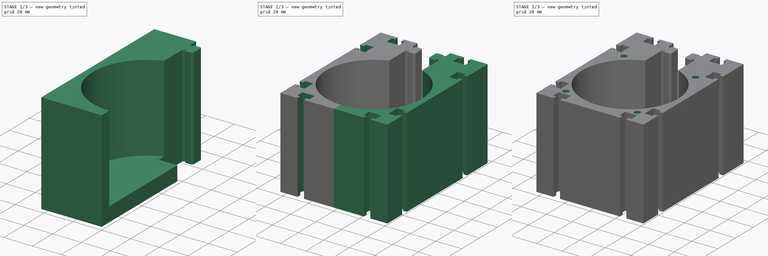
[diagram: build sequence overview — one tinted view per stage of 3, left to right]
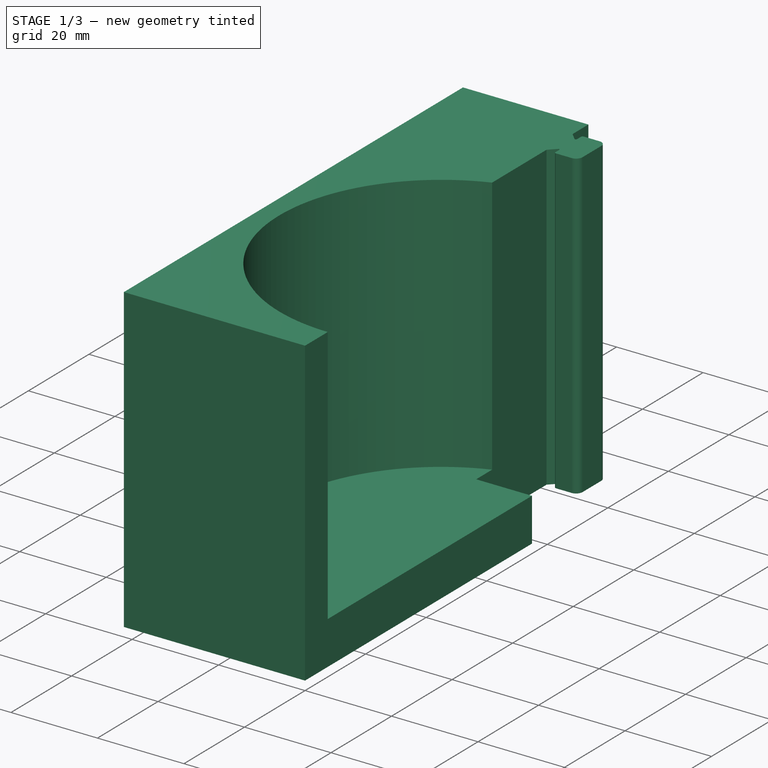
[diagram: stage 1 of 3 — iso view after this stage's code; geometry added in this stage tinted green]
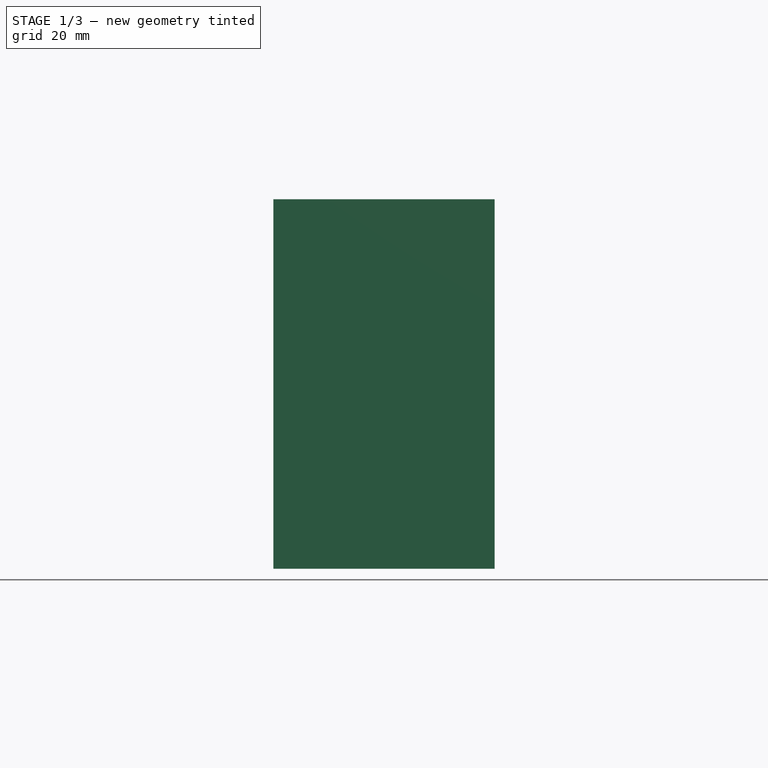
[diagram: stage 1 of 3 — front view after this stage's code; geometry added in this stage tinted green]
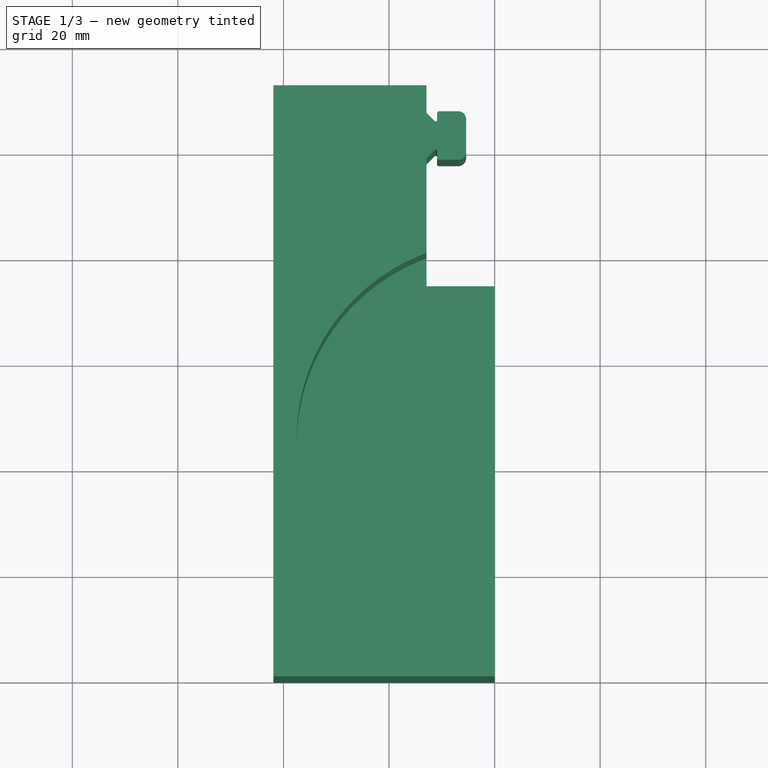
[diagram: stage 1 of 3 — top view after this stage's code; geometry added in this stage tinted green]
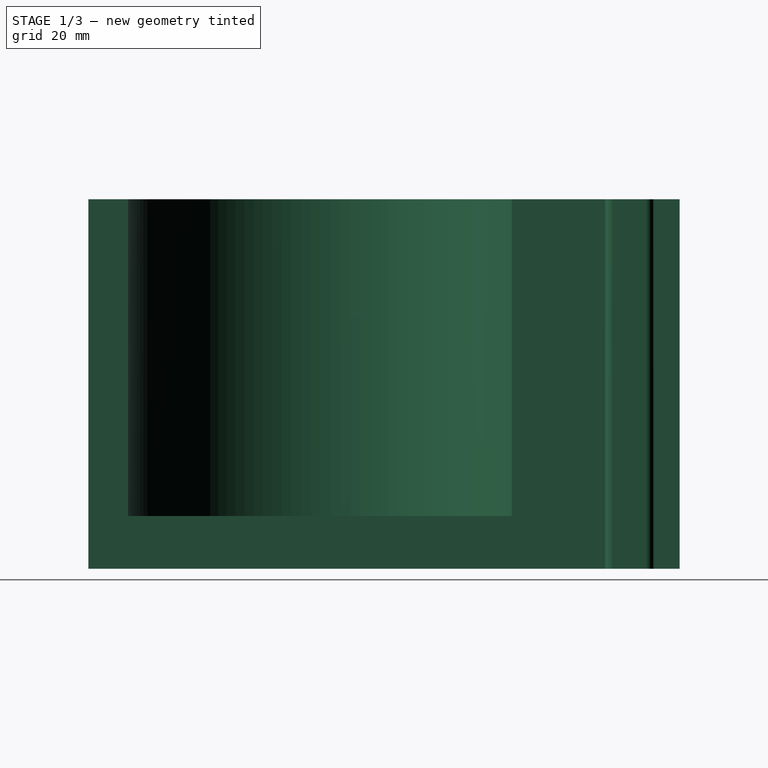
[diagram: stage 1 of 3 — right view after this stage's code; geometry added in this stage tinted green]
FCSTD DOCUMENT  (FreeCAD 0.20R29410 (Git))
Label: block
License: All rights reserved
LicenseURL: http://en.wikipedia.org/wiki/All_rights_reserved
objects: Sketcher::SketchObject×5, PartDesign::Pocket×4, App::Link×3, Part::Feature×2, PartDesign::Pad×1, PartDesign::Mirrored×1, PartDesign::Body×1, Spreadsheet::Sheet×1
note: 19 computed .brp shape members not serialized (recipe doc carries the construction recipe); baked Part::Feature solids carry a one-line shape summary decoded from their .brp
EXTERNAL_REF file=worm.FCStd obj=Body
EXTERNAL_REF file=rack.FCStd obj=Body
EXTERNAL_REF file=cover.FCStd obj=Body

FEATURE [PartDesign::Chamfer] Chamfer
  Angle = 45
  Base = -> Pocket001 [Edge256,Edge254,Edge258]
  BaseFeature = -> Pocket001
  ChamferType = 0
  FlipDirection = false
  Size = 2
  Size2 = 1
  SupportTransform = false
  UseAllEdges = false
FEATURE [PartDesign::Body] Body
  BaseFeature = -> InvoluteRack
  Group = -> [BaseFeature,Sketch,Pocket,Sketch001,Pocket001,Chamfer]
  Origin = -> Origin
  Tip = -> Chamfer
---- part worm.FCStd = doc fcstd_d9a325f1159e ----
FCSTD DOCUMENT  (FreeCAD 0.20R29410 (Git))
Label: worm
License: All rights reserved
LicenseURL: http://en.wikipedia.org/wiki/All_rights_reserved
objects: Sketcher::SketchObject×2, Part::FeaturePython×1, PartDesign::FeatureBase×1, PartDesign::Pocket×1, PartDesign::Pad×1, PartDesign::Body×1
note: 9 computed .brp shape members not serialized (recipe doc carries the construction recipe); baked Part::Feature solids carry a one-line shape summary decoded from their .brp

FEATURE [Part::FeaturePython] WormGear  # WARN: FeaturePython — macro-defined, semantics opaque (R4)
  AttacherType = Attacher::AttachEngine3D
  beta = 3.41659
  clearance = 0.25
  diameter = 67
  head = 0
  height = 56
  module = 2
  pressure_angle = 30
  reverse_pitch = false
  teeth = 2
  version = 0.0.4
FEATURE [Sketcher::SketchObject] Sketch
  FullyConstrained = true
  MapMode = 5
  Support = -> [XY_Plane]
  sketch-geometry (5):
    g0: ArcOfCircle CenterX=0 CenterY=0 CenterZ=0 NormalX=0 NormalY=0 NormalZ=1 AngleXU=0 Radius=4.1 StartAngle=1.84242 EndAngle=7.58236
    g1: LineSegment StartX=-1.1 StartY=3.94968 StartZ=0 EndX=-1.1 EndY=5.2 EndZ=0
    g2: LineSegment StartX=-1.1 StartY=5.2 StartZ=0 EndX=1.1 EndY=5.2 EndZ=0
    g3: LineSegment StartX=1.1 StartY=5.2 StartZ=0 EndX=1.1 EndY=3.94968 EndZ=0
    g4: GeomPoint X=0 Y=4.1 Z=0
  constraints (14):
    c: Coincident(g0,g-1)
    c: Diameter(g0) = 8.2
    c: Coincident(g1,g2)
    c: Coincident(g2,g3)
    c: Horizontal(g2)
    c: Vertical(g1)
    c: Vertical(g3)
    c: PointOnObject(g4,g0)
    c: PointOnObject(g4,g-2)
    c: DistanceX(g2,g2) = 2.2
    c: Coincident(g0,g3)
    c: Coincident(g0,g1)
    c: DistanceY(g4,g1) = 1.1
    c: Horizontal(g0,g0)
FEATURE [PartDesign::FeatureBase] BaseFeature
  BaseFeature = -> WormGear
FEATURE [PartDesign::Pocket] Pocket
  BaseFeature = -> BaseFeature
  Direction = (0,0,-1)
  Length = 45
  Length2 = 5
  Profile = -> Sketch
  ReferenceAxis = -> Sketch [N_Axis]
  Reversed = true
  Type = 0
FEATURE [Sketcher::SketchObject] Sketch001
  FullyConstrained = true
  MapMode = 5
  Placement = pos=(0.0012035,-0.000338703,55.9998) rot=(0.270908,0.962605,3e-06;2.2e-05rad)
  Support = -> [Pocket]
  sketch-geometry (1):
    g0: Circle CenterX=0 CenterY=0 CenterZ=0 NormalX=0 NormalY=0 NormalZ=1 AngleXU=0 Radius=4.7
  constraints (2):
    c: Coincident(g0,g-1)
    c: Diameter(g0) = 9.4
FEATURE [PartDesign::Pad] Pad
  BaseFeature = -> Pocket
  Direction = (2.14911e-05,-6.04828e-06,1)
  Length = 10
  Length2 = 10
  Profile = -> Sketch001
  ReferenceAxis = -> Sketch001 [N_Axis]
  Type = 0
FEATURE [PartDesign::Body] Body
  BaseFeature = -> WormGear
  Group = -> [BaseFeature,Sketch,Pocket,Sketch001,Pad]
  Origin = -> Origin
  Tip = -> Pad
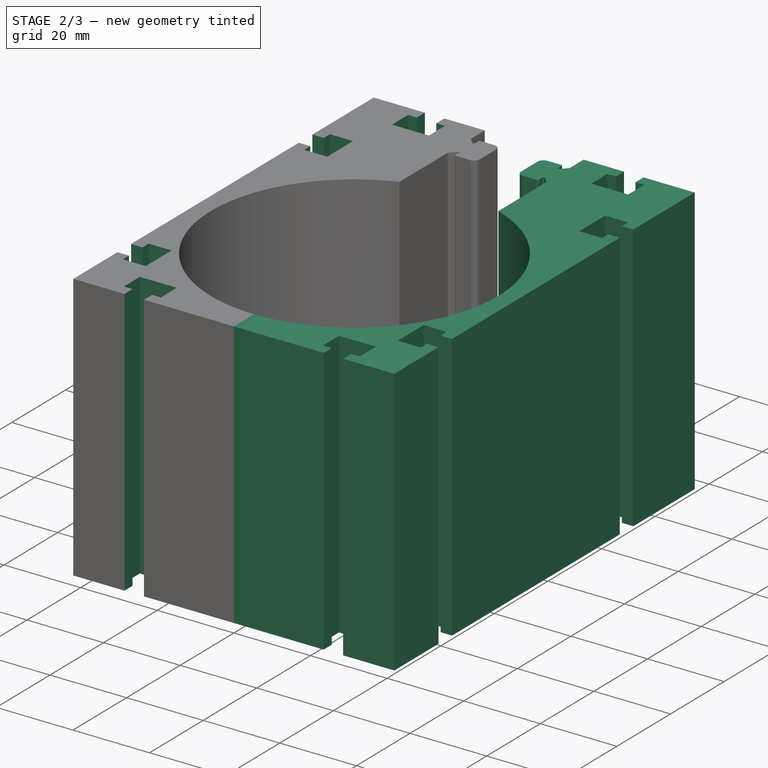
[diagram: stage 2 of 3 — iso view after this stage's code; geometry added in this stage tinted green]
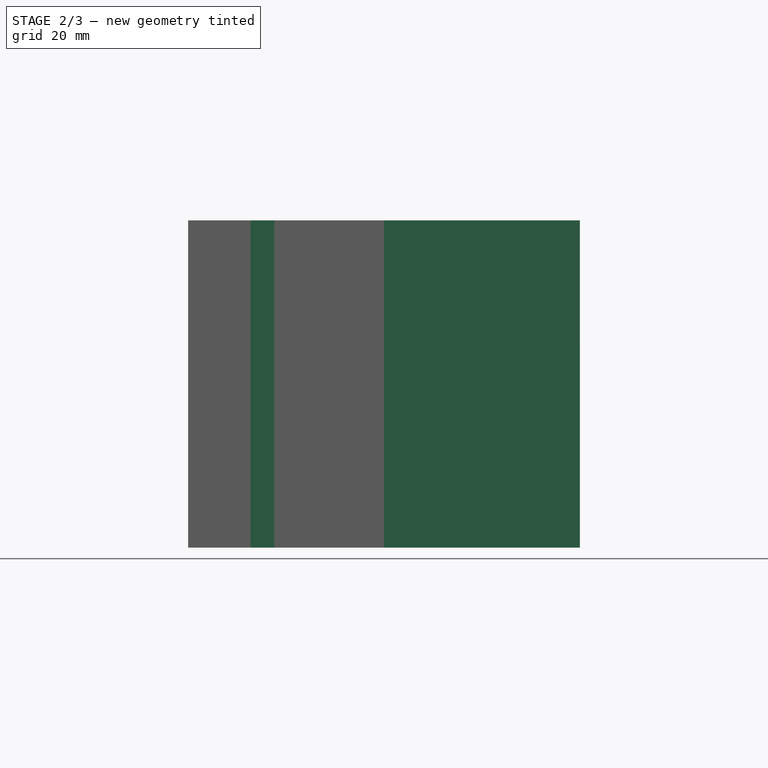
[diagram: stage 2 of 3 — front view after this stage's code; geometry added in this stage tinted green]
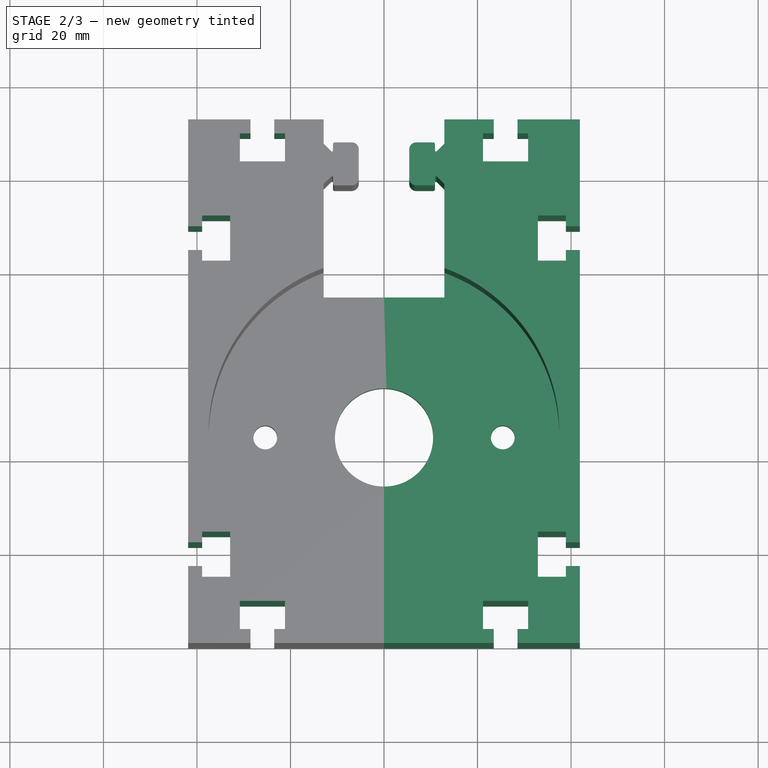
[diagram: stage 2 of 3 — top view after this stage's code; geometry added in this stage tinted green]
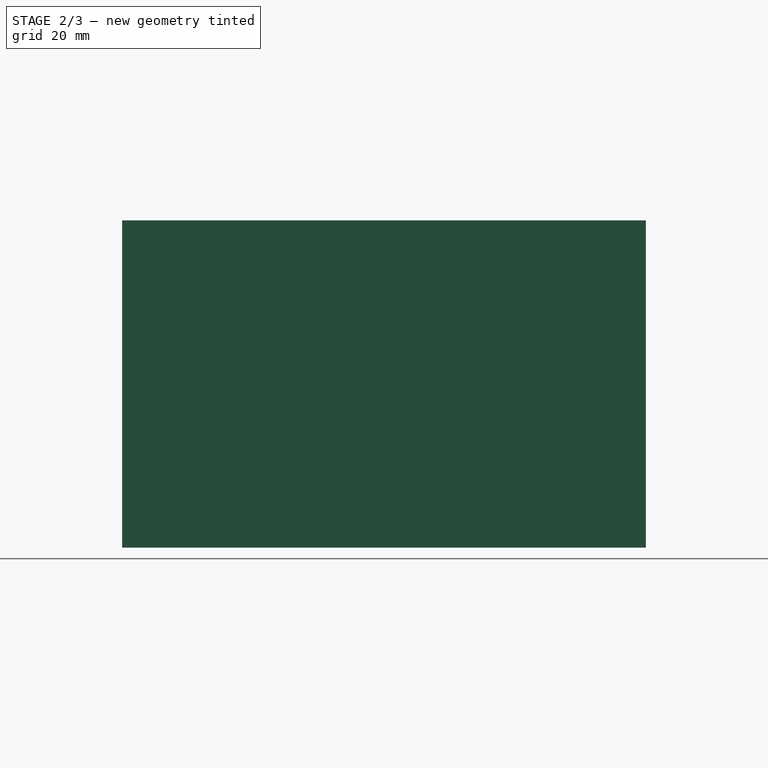
[diagram: stage 2 of 3 — right view after this stage's code; geometry added in this stage tinted green]
FEATURE [PartDesign::Body] Body
  Group = -> [Sketch,Pad,Sketch001,Pocket,Sketch002,Pocket001,Mirrored,Sketch003,Pocket002,Sketch004,Pocket003]
  Origin = -> Origin
  Tip = -> Pocket003
FEATURE [App::Link] Link  label="worm"
  LinkPlacement = pos=(0,45.1,11.1) rot=(0,0,1;0rad)
  LinkedObject = -> <external worm.FCStd>#Body
  Placement = pos=(0,45.1,11.1) rot=(0,0,1;0rad)
FEATURE [App::Link] Link001  label="rail"
  LinkPlacement = pos=(-12.2,80.2301,102.5) rot=(0.57735,-0.57735,0.57735;4.18879rad)
  LinkedObject = -> <external rack.FCStd>#Body
  Placement = pos=(-12.2,80.2301,102.5) rot=(0.57735,-0.57735,0.57735;4.18879rad)
FEATURE [App::Link] Link002  label="cover"
  LinkPlacement = pos=(0,-8.34465e-06,70) rot=(0,0,1;0rad)
  LinkedObject = -> <external cover.FCStd>#Body
  Placement = pos=(0,-8.34465e-06,70) rot=(0,0,1;0rad)
FEATURE [Part::Feature] Part__Feature001  label="217-2000"
  Placement = pos=(0,45,0) rot=(0,1,0;1.5708rad)
  shape: bbox 69.01 x 69.01 x 150.2 mm, 52 faces (baked)
FEATURE [Spreadsheet::Sheet] Spreadsheet
  cells = A1=motor distance; B1(motor_distance)==45mm

RESOLVED EXTERNAL PARTS (link-assembly join: the EXTERNAL_REF files above that resolve inside this repo's crawl, each included once):
---- part cover.FCStd = doc fcstd_0ceb0e149940 ----
FCSTD DOCUMENT  (FreeCAD 0.20R29410 (Git))
Label: cover
License: All rights reserved
LicenseURL: http://en.wikipedia.org/wiki/All_rights_reserved
objects: Sketcher::SketchObject×4, PartDesign::Pocket×3, PartDesign::Pad×1, PartDesign::Mirrored×1, PartDesign::Body×1
note: 14 computed .brp shape members not serialized (recipe doc carries the construction recipe); baked Part::Feature solids carry a one-line shape summary decoded from their .brp

FEATURE [Sketcher::SketchObject] Sketch
  FullyConstrained = true
  MapMode = 5
  Support = -> [XY_Plane]
  sketch-geometry (8):
    g0: LineSegment StartX=-2.6e-15 StartY=0 StartZ=0 EndX=-41.8 EndY=0 EndZ=0
    g1: LineSegment StartX=-41.8 StartY=0 StartZ=0 EndX=-41.8 EndY=112 EndZ=0
    g2: LineSegment StartX=-41.8 StartY=112 StartZ=0 EndX=-12.8 EndY=112 EndZ=0
    g3: LineSegment StartX=-12.8 StartY=112 StartZ=0 EndX=-12.8 EndY=76 EndZ=0
    g4: LineSegment StartX=-12.8 StartY=76 StartZ=0 EndX=-1.8e-15 EndY=76 EndZ=0
    g5: Circle CenterX=-28 CenterY=13 CenterZ=0 NormalX=0 NormalY=0 NormalZ=1 AngleXU=0 Radius=2.54
    g6: Circle CenterX=-28 CenterY=78 CenterZ=0 NormalX=0 NormalY=0 NormalZ=1 AngleXU=0 Radius=2.54
    g7: LineSegment StartX=-1.8e-15 StartY=76 StartZ=0 EndX=-2.6e-15 EndY=0 EndZ=0
  constraints (23):
    c: Coincident(g0,g1)
    c: Horizontal(g0)
    c: Vertical(g1)
    c: Coincident(g0,g-1)
    c: Coincident(g2,g1)
    c: Horizontal(g2)
    c: Coincident(g3,g2)
    c: Vertical(g3)
    c: Coincident(g4,g3)
    c: PointOnObject(g4,g-2)
    c: Horizontal(g4)
    c: Coincident(g7,g0)
    c: DistanceY(g1,g1) = 112
    c: DistanceX(g2,g2) = 29
    c: DistanceX(g4,g4) = 12.8
    c: DistanceY(g3,g3) = 36
    c: DistanceX(g5,g0) = 28
    c: Vertical(g6,g5)
    c: DistanceY(g5,g6) = 65
    c: DistanceY(g0,g5) = 13
    c: Equal(g5,g6)
    c: Diameter(g5) = 5.08
    c: Coincident(g7,g4)
FEATURE [PartDesign::Pad] Pad
  Direction = (0,0,1)
  Length = 12
  Length2 = 10
  Profile = -> Sketch
  ReferenceAxis = -> Sketch [N_Axis]
  Type = 0
FEATURE [PartDesign::Mirrored] Mirrored
  BaseFeature = -> Pad
  MirrorPlane = -> Sketch [V_Axis]
  Originals = -> [Pad]
FEATURE [PartDesign::Body] Body
  Group = -> [Sketch,Pad,Mirrored,Sketch001,Pocket,Sketch002,Pocket001,Sketch003,Pocket002]
  Origin = -> Origin
  Tip = -> Pocket002
---- part rack.FCStd = doc fcstd_aebf4dab78c8 ----
FCSTD DOCUMENT  (FreeCAD 0.20R29410 (Git))
Label: rack
License: All rights reserved
LicenseURL: http://en.wikipedia.org/wiki/All_rights_reserved
objects: Sketcher::SketchObject×2, PartDesign::Pocket×2, Part::FeaturePython×1, PartDesign::FeatureBase×1, PartDesign::Chamfer×1, PartDesign::Body×1
note: 11 computed .brp shape members not serialized (recipe doc carries the construction recipe); baked Part::Feature solids carry a one-line shape summary decoded from their .brp

FEATURE [Part::FeaturePython] InvoluteRack  # WARN: FeaturePython — macro-defined, semantics opaque (R4)
  AttacherType = Attacher::AttachEngine3D
  add_endings = true
  beta = 3.37
  clearance = 0.25
  double_helix = false
  head = 0
  head_fillet = 0
  height = 24
  module = 2
  pressure_angle = 30
  properties_from_tool = false
  root_fillet = 0
  simplified = false
  teeth = 17
  thickness = 7
  transverse_pitch = 6.28319
  version = 0.0.4
FEATURE [PartDesign::FeatureBase] BaseFeature
  BaseFeature = -> InvoluteRack
FEATURE [Sketcher::SketchObject] Sketch
  FullyConstrained = true
  MapMode = 5
  Placement = pos=(-9.5,0,0) rot=(0.57735,-0.57735,-0.57735;2.0944rad)
  Support = -> [BaseFeature]
  sketch-geometry (3):
    g0: Circle CenterX=-12 CenterY=12 CenterZ=0 NormalX=0 NormalY=0 NormalZ=1 AngleXU=0 Radius=2.54
    g1: Circle CenterX=-48 CenterY=12 CenterZ=0 NormalX=0 NormalY=0 NormalZ=1 AngleXU=0 Radius=2.54
    g2: Circle CenterX=-84 CenterY=12 CenterZ=0 NormalX=0 NormalY=0 NormalZ=1 AngleXU=0 Radius=2.54
  constraints (9):
    c: DistanceY(g-1,g0) = 12
    c: DistanceX(g0,g-1) = 12
    c: DistanceX(g2,g1) = 36
    c: Horizontal(g2,g1)
    c: Equal(g1,g2)
    c: Diameter(g0) = 5.08
    c: DistanceX(g1,g0) = 36
    c: Horizontal(g1,g0)
    c: Equal(g2,g0)
FEATURE [PartDesign::Pocket] Pocket  label="Through Hole"
  BaseFeature = -> BaseFeature
  Direction = (1,0,0)
  Length = 5
  Length2 = 5
  Profile = -> Sketch
  ReferenceAxis = -> Sketch [N_Axis]
  Type = 1
FEATURE [Sketcher::SketchObject] Sketch001
  AttachmentOffset = pos=(0,0,-6.35) rot=(0,0,1;0rad)
  FullyConstrained = true
  MapMode = 5
  Placement = pos=(-3.15,0,0) rot=(0.57735,-0.57735,-0.57735;2.0944rad)
  Support = -> [Pocket]
  sketch-geometry (3):
    g0: Circle CenterX=-12 CenterY=12 CenterZ=0 NormalX=0 NormalY=0 NormalZ=1 AngleXU=0 Radius=5.08
    g1: Circle CenterX=-48 CenterY=12 CenterZ=0 NormalX=0 NormalY=0 NormalZ=1 AngleXU=0 Radius=5.08
    g2: Circle CenterX=-84 CenterY=12 CenterZ=0 NormalX=0 NormalY=0 NormalZ=1 AngleXU=0 Radius=5.08
  constraints (9):
    c: DistanceX(g0,g-1) = 12
    c: DistanceY(g-1,g0) = 12
    c: DistanceX(g1,g0) = 36
    c: Equal(g0,g1)
    c: Diameter(g0) = 10.16
    c: DistanceX(g2,g1) = 36
    c: Equal(g1,g2)
    c: Horizontal(g2,g1)
    c: Horizontal(g1,g0)
FEATURE [PartDesign::Pocket] Pocket001
  BaseFeature = -> Pocket
  Direction = (1,0,0)
  Length = 5
  Length2 = 5
  Profile = -> Sketch001
  ReferenceAxis = -> Sketch001 [N_Axis]
  Type = 1
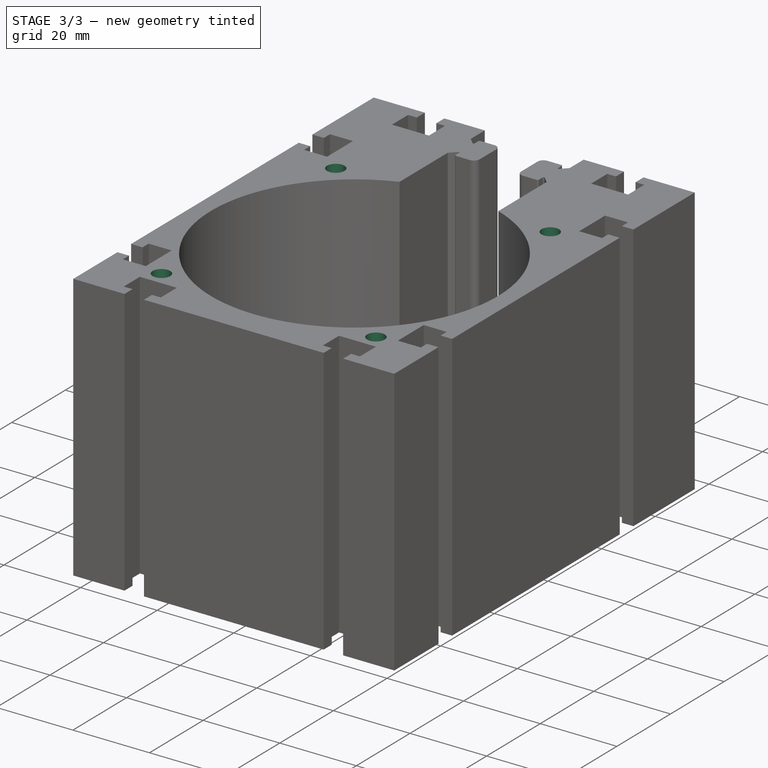
[diagram: stage 3 of 3 — iso view after this stage's code; geometry added in this stage tinted green]
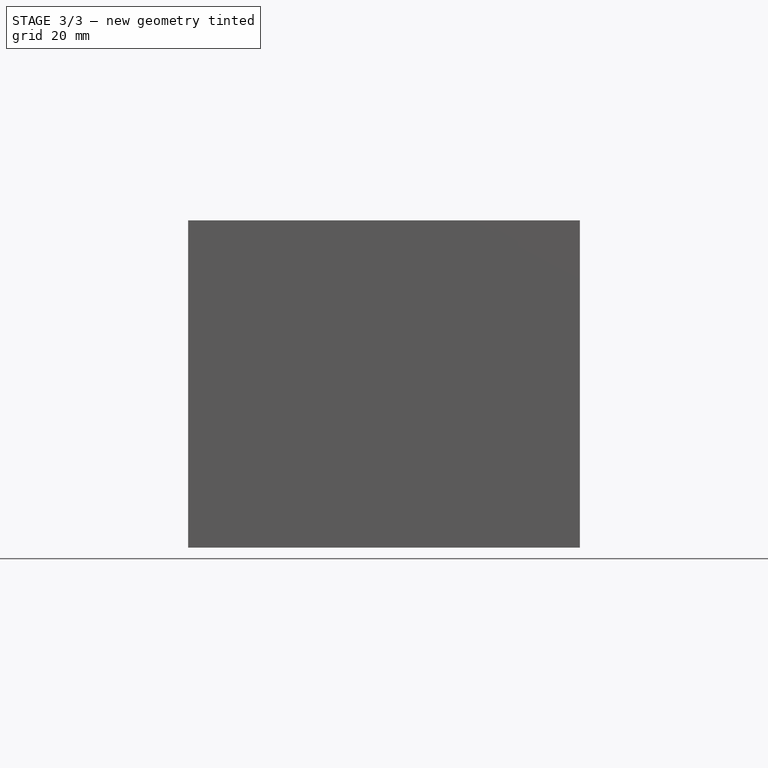
[diagram: stage 3 of 3 — front view after this stage's code; geometry added in this stage tinted green]
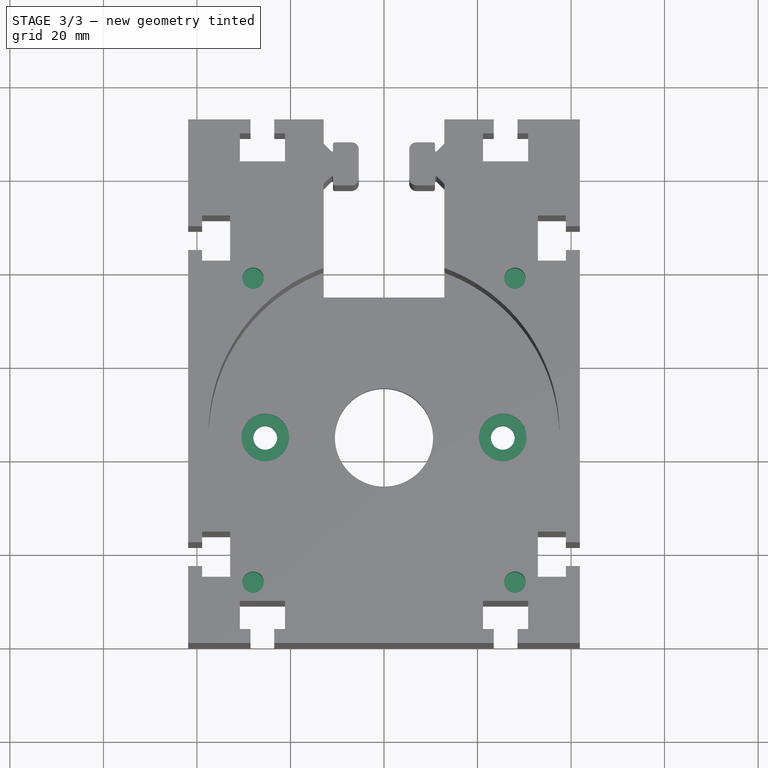
[diagram: stage 3 of 3 — top view after this stage's code; geometry added in this stage tinted green]
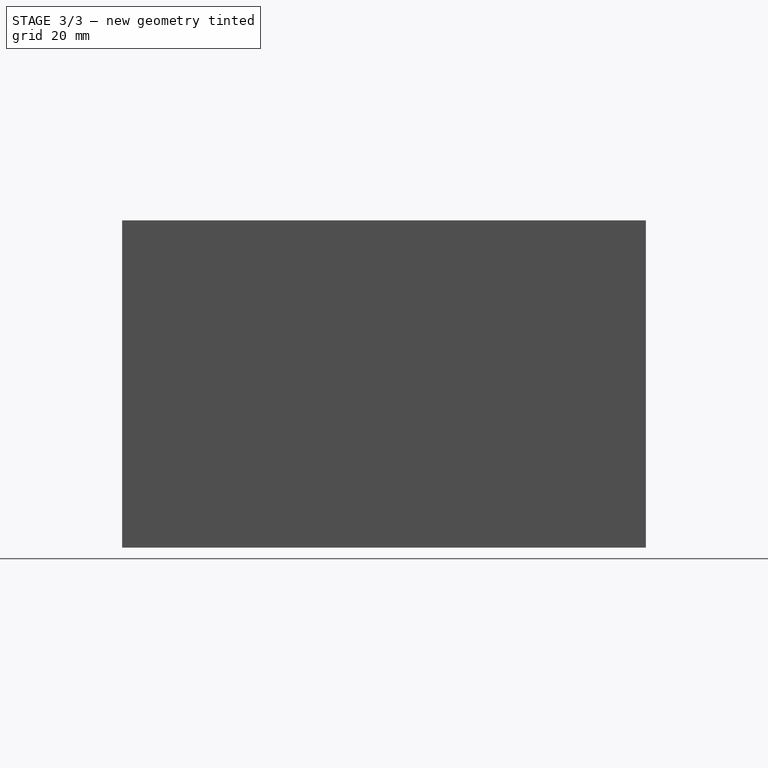
[diagram: stage 3 of 3 — right view after this stage's code; geometry added in this stage tinted green]
FEATURE [Sketcher::SketchObject] Sketch
  FullyConstrained = true
  MapMode = 5
  Support = -> [XY_Plane]
  sketch-geometry (21):
    g0: LineSegment StartX=0 StartY=0 StartZ=0 EndX=-41.9 EndY=0 EndZ=0
    g1: LineSegment StartX=-41.9 StartY=0 StartZ=0 EndX=-41.9 EndY=112 EndZ=0
    g2: LineSegment StartX=-10.8964 StartY=105.375 StartZ=0 EndX=-10.8964 EndY=106.7 EndZ=0
    g3: LineSegment StartX=-10.5214 StartY=107.075 StartZ=0 EndX=-6.89645 EndY=107.075 EndZ=0
    g4: LineSegment StartX=-5.39645 StartY=105.575 StartZ=0 EndX=-5.39645 EndY=99.375 EndZ=0
    g5: LineSegment StartX=-6.89645 StartY=97.875 StartZ=0 EndX=-10.5214 EndY=97.875 EndZ=0
    g6: LineSegment StartX=-10.8964 StartY=98.25 StartZ=0 EndX=-10.8964 EndY=99.575 EndZ=0
    g7: LineSegment StartX=-11.3232 StartY=99.7518 StartZ=0 EndX=-12.9 EndY=98.175 EndZ=0
    g8: ArcOfCircle CenterX=-10.5214 CenterY=106.7 CenterZ=0 NormalX=0 NormalY=0 NormalZ=1 AngleXU=0 Radius=0.375 StartAngle=1.5708 EndAngle=3.14159
    g9: ArcOfCircle CenterX=-6.89645 CenterY=105.575 CenterZ=0 NormalX=0 NormalY=0 NormalZ=1 AngleXU=0 Radius=1.5 StartAngle=4.6e-15 EndAngle=1.5708
    g10: ArcOfCircle CenterX=-6.89645 CenterY=99.375 CenterZ=0 NormalX=0 NormalY=0 NormalZ=1 AngleXU=0 Radius=1.5 StartAngle=4.71239 EndAngle=6.28319
    g11: ArcOfCircle CenterX=-10.5214 CenterY=98.25 CenterZ=0 NormalX=0 NormalY=0 NormalZ=1 AngleXU=0 Radius=0.375 StartAngle=3.14159 EndAngle=4.71239
    g12: LineSegment StartX=-41.9 StartY=112 StartZ=0 EndX=-12.9 EndY=112 EndZ=0
    g13: LineSegment StartX=-12.9 StartY=112 StartZ=0 EndX=-12.9 EndY=106.775 EndZ=0
    g14: LineSegment StartX=-12.9 StartY=106.775 StartZ=0 EndX=-11.3232 EndY=105.198 EndZ=0
    g15: LineSegment StartX=-12.9 StartY=98.175 StartZ=0 EndX=-12.9 EndY=92.95 EndZ=0
    g16: LineSegment StartX=-12.9 StartY=92.95 StartZ=0 EndX=-12.9 EndY=74.95 EndZ=0
    g17: ArcOfCircle CenterX=-11.1464 CenterY=105.375 CenterZ=0 NormalX=0 NormalY=0 NormalZ=1 AngleXU=0 Radius=0.25 StartAngle=3.92699 EndAngle=6.28319
    g18: ArcOfCircle CenterX=-11.1464 CenterY=99.575 CenterZ=0 NormalX=0 NormalY=0 NormalZ=1 AngleXU=0 Radius=0.25 StartAngle=1.11e-14 EndAngle=2.35619
    g19: LineSegment StartX=-12.9 StartY=74.95 StartZ=0 EndX=0 EndY=74.95 EndZ=0
    g20: LineSegment StartX=0 StartY=0 StartZ=0 EndX=0 EndY=74.95 EndZ=0
  constraints (56):
    c: Coincident(g0,g-1)
    c: PointOnObject(g0,g-1)
    c: Coincident(g1,g0)
    c: Vertical(g1)
    c: Vertical(g2)
    c: Horizontal(g3)
    c: Vertical(g4)
    c: Horizontal(g5)
    c: Vertical(g6)
    c: Tangent(g2,g8) = 1.5708
    c: Tangent(g3,g8) = 1.5708
    c: Tangent(g3,g9) = 1.5708
    c: Tangent(g4,g9) = 1.5708
    c: Tangent(g4,g10) = 1.5708
    c: Tangent(g5,g10) = 1.5708
    c: Tangent(g5,g11) = 1.5708
    c: Tangent(g6,g11) = 1.5708
    c: Diameter(g10) = 3
    c: Diameter(g11) = 0.75
    c: Equal(g11,g8)
    c: Equal(g9,g10)
    c: DistanceY(g5,g3) = 9.2
    c: Equal(g6,g2)
    c: Coincident(g12,g1)
    c: Horizontal(g12)
    c: Coincident(g13,g12)
    c: Vertical(g13)
    c: Coincident(g14,g13)
    c: Coincident(g15,g7)
    c: Vertical(g15)
    c: Coincident(g16,g15)
    c: Vertical(g16)
    c: DistanceY(g15,g12) = 19.05
    c: Equal(g15,g13)
    c: Vertical(g7,g13)
    c: Tangent(g2,g17) = -1.5708
    c: Tangent(g14,g17) = -1.5708
    c: Tangent(g6,g18) = -1.5708
    c: Tangent(g7,g18) = -1.5708
    c: Vertical(g18,g17)
    c: Diameter(g17) = 0.5
    c: Equal(g18,g17)
    c: DistanceY(g18,g17) = 5.8
    c: DistanceY(g7,g13) = 8.6
    c: Equal(g14,g7)
    c: DistanceX(g2,g4) = 5.5
    c: DistanceX(g12,g12) = 29
    c: DistanceY(g1,g1) = 112
    c: DistanceX(g12,g-1) = 12.9
    c: Coincident(g19,g16)
    c: PointOnObject(g19,g-2)
    c: Horizontal(g19)
    c: Coincident(g20,g0)
    c: Coincident(g20,g19)
    c: DistanceY(g16,g16) = 18
    c: Angle(g2,g14) = 0.785398
FEATURE [Part::Feature] Part__Feature  label="REV-21-1000"
  Placement = pos=(0,102.46,0) rot=(0,0,1;0rad)
  shape: bbox 25.4 x 25.4 x 500 mm, 162 faces (baked)
FEATURE [PartDesign::Pad] Pad
  Direction = (0,0,1)
  Length = 70
  Length2 = 10
  Profile = -> Sketch
  ReferenceAxis = -> Sketch [N_Axis]
  Type = 0
FEATURE [Sketcher::SketchObject] Sketch001
  FullyConstrained = true
  MapMode = 5
  Placement = pos=(0,0,70) rot=(0,0,1;0rad)
  Support = -> [Pad]
  expr: Constraints[1] = Spreadsheet.motor_distance
  sketch-geometry (1):
    g0: Circle CenterX=0 CenterY=45 CenterZ=0 NormalX=0 NormalY=0 NormalZ=1 AngleXU=0 Radius=37.5
  constraints (3):
    c: PointOnObject(g0,g-2)
    c: DistanceY(g-1,g0) = 45
    c: Diameter(g0) = 75
FEATURE [PartDesign::Pocket] Pocket
  BaseFeature = -> Pad
  Direction = (0,0,-1)
  Length = 0
  Length2 = 5
  Offset = -10
  Profile = -> Sketch001
  ReferenceAxis = -> Sketch001 [N_Axis]
  Type = 3
  UpToFace = -> Pad [Face22]
FEATURE [Sketcher::SketchObject] Sketch002
  ExternalGeometry = -> [Pocket]
  FullyConstrained = false
  MapMode = 5
  Placement = pos=(0,0,70) rot=(0,0,1;0rad)
  Support = -> [Pocket]
  expr: Constraints[26] = Spreadsheet.motor_distance
  sketch-geometry (38):
    g0: Circle CenterX=-25.4 CenterY=45 CenterZ=0 NormalX=0 NormalY=0 NormalZ=1 AngleXU=0 Radius=2.54
    g1: LineSegment StartX=-30.826 StartY=109 StartZ=0 EndX=-28.54 EndY=109 EndZ=0
    g2: LineSegment StartX=-21.174 StartY=109 StartZ=0 EndX=-21.174 EndY=103 EndZ=0
    g3: LineSegment StartX=-21.174 StartY=103 StartZ=0 EndX=-30.826 EndY=103 EndZ=0
    g4: LineSegment StartX=-30.826 StartY=103 StartZ=0 EndX=-30.826 EndY=109 EndZ=0
    g5: LineSegment StartX=-38.9 StartY=91.426 StartZ=0 EndX=-32.9 EndY=91.426 EndZ=0
    g6: LineSegment StartX=-32.9 StartY=91.426 StartZ=0 EndX=-32.9 EndY=81.774 EndZ=0
    g7: LineSegment StartX=-32.9 StartY=81.774 StartZ=0 EndX=-38.9 EndY=81.774 EndZ=0
    g8: LineSegment StartX=-38.9 StartY=81.774 StartZ=0 EndX=-38.9 EndY=84.06 EndZ=0
    g9: LineSegment StartX=-38.9 StartY=23.826 StartZ=0 EndX=-32.9 EndY=23.826 EndZ=0
    g10: LineSegment StartX=-32.9 StartY=23.826 StartZ=0 EndX=-32.9 EndY=14.174 EndZ=0
    g11: LineSegment StartX=-32.9 StartY=14.174 StartZ=0 EndX=-38.9 EndY=14.174 EndZ=0
    g12: LineSegment StartX=-38.9 StartY=14.174 StartZ=0 EndX=-38.9 EndY=16.46 EndZ=0
    g13: LineSegment StartX=-23.46 StartY=109 StartZ=0 EndX=-23.46 EndY=117.224 EndZ=0
    g14: LineSegment StartX=-23.46 StartY=117.224 StartZ=0 EndX=-28.54 EndY=117.224 EndZ=0
    g15: LineSegment StartX=-28.54 StartY=117.224 StartZ=0 EndX=-28.54 EndY=109 EndZ=0
    g16: LineSegment StartX=-23.46 StartY=109 StartZ=0 EndX=-21.174 EndY=109 EndZ=0
    g17: GeomPoint X=-26 Y=117.224 Z=0
    g18: LineSegment StartX=-38.9 StartY=89.14 StartZ=0 EndX=-44.971 EndY=89.14 EndZ=0
    g19: LineSegment StartX=-44.971 StartY=89.14 StartZ=0 EndX=-44.971 EndY=84.06 EndZ=0
    g20: LineSegment StartX=-44.971 StartY=84.06 StartZ=0 EndX=-38.9 EndY=84.06 EndZ=0
    g21: LineSegment StartX=-38.9 StartY=89.14 StartZ=0 EndX=-38.9 EndY=91.426 EndZ=0
    g22: GeomPoint X=-44.971 Y=86.6 Z=0
    g23: Circle CenterX=0 CenterY=45 CenterZ=0 NormalX=0 NormalY=0 NormalZ=1 AngleXU=0 Radius=10.5
    g24: LineSegment StartX=-38.9 StartY=16.46 StartZ=0 EndX=-45.3888 EndY=16.46 EndZ=0
    g25: LineSegment StartX=-45.3888 StartY=16.46 StartZ=0 EndX=-45.3888 EndY=21.54 EndZ=0
    g26: LineSegment StartX=-45.3888 StartY=21.54 StartZ=0 EndX=-38.9 EndY=21.54 EndZ=0
    g27: LineSegment StartX=-38.9 StartY=21.54 StartZ=0 EndX=-38.9 EndY=23.826 EndZ=0
    g28: GeomPoint X=-45.3888 Y=19 Z=0
    g29: LineSegment StartX=-30.826 StartY=3 StartZ=0 EndX=-28.54 EndY=3 EndZ=0
    g30: LineSegment StartX=-21.174 StartY=3 StartZ=0 EndX=-21.174 EndY=9 EndZ=0
    g31: LineSegment StartX=-21.174 StartY=9 StartZ=0 EndX=-30.826 EndY=9 EndZ=0
    g32: LineSegment StartX=-30.826 StartY=9 StartZ=0 EndX=-30.826 EndY=3 EndZ=0
    g33: LineSegment StartX=-28.54 StartY=3 StartZ=0 EndX=-28.54 EndY=-1.73673 EndZ=0
    g34: LineSegment StartX=-28.54 StartY=-1.73673 StartZ=0 EndX=-23.46 EndY=-1.73673 EndZ=0
    g35: LineSegment StartX=-23.46 StartY=-1.73673 StartZ=0 EndX=-23.46 EndY=3 EndZ=0
    g36: LineSegment StartX=-23.46 StartY=3 StartZ=0 EndX=-21.174 EndY=3 EndZ=0
    g37: GeomPoint X=-26 Y=-1.73673 Z=0
  constraints (102):
    c: Coincident(g16,g2)
    c: Coincident(g2,g3)
    c: Coincident(g3,g4)
    c: Coincident(g4,g1)
    c: Horizontal(g1)
    c: Horizontal(g3)
    c: Vertical(g2)
    c: Vertical(g4)
    c: Coincident(g5,g6)
    c: Coincident(g6,g7)
    c: Coincident(g7,g8)
    c: Coincident(g21,g5)
    c: Horizontal(g5)
    c: Horizontal(g7)
    c: Vertical(g6)
    c: Vertical(g8)
    c: Coincident(g9,g10)
    c: Coincident(g10,g11)
    c: Coincident(g11,g12)
    c: Coincident(g27,g9)
    c: Horizontal(g9)
    c: Horizontal(g11)
    c: Vertical(g10)
    c: Vertical(g12)
    c: Diameter(g0) = 5.08
    c: DistanceX(g0,g-1) = 25.4
    c: DistanceY(g-1,g0) = 45
    c: Coincident(g13,g14)
    c: Coincident(g14,g15)
    c: Horizontal(g14)
    c: Vertical(g13)
    c: Vertical(g15)
    c: Coincident(g1,g15)
    c: Coincident(g13,g16)
    c: DistanceY(g1,g-4) = 3
    c: Horizontal(g1,g13)
    c: Horizontal(g16)
    c: DistanceX(g14,g14) = 5.08
    c: DistanceX(g3,g3) = 9.652
    c: Equal(g16,g1)
    c: Symmetric(g14,g13,g17)
    c: DistanceX(g17,g-1) = 26
    c: Horizontal(g18)
    c: Coincident(g19,g18)
    c: Vertical(g19)
    c: Coincident(g20,g19)
    c: Horizontal(g20)
    c: Coincident(g8,g20)
    c: Coincident(g21,g18)
    c: DistanceY(g6,g6) = 9.652
    c: Equal(g21,g8)
    c: DistanceY(g19,g19) = 5.08
    c: DistanceY(g4,g4) = 6
    c: DistanceX(g5,g5) = 6
    c: Vertical(g21)
    c: Vertical(g18,g8)
    c: Symmetric(g19,g18,g22)
    c: DistanceY(g22,g-4) = 25.4
    c: DistanceX(g-4,g5) = 3
    c: PointOnObject(g23,g-2)
    c: Horizontal(g23,g0)
    c: Diameter(g23) = 21
    c: Horizontal(g24)
    c: Coincident(g25,g24)
    c: Vertical(g25)
    c: Coincident(g26,g25)
    c: Horizontal(g26)
    c: DistanceX(g9,g9) = 6
    c: DistanceY(g10,g10) = 9.652
    c: Vertical(g27)
    c: DistanceX(g-4,g9) = 3
    c: Symmetric(g25,g24,g28)
    c: DistanceY(g-5,g28) = 19
    c: Coincident(g24,g12)
    c: Equal(g27,g12)
    c: DistanceY(g25,g25) = 5.08
    c: Coincident(g26,g27)
    c: Vertical(g26,g12)
    c: Coincident(g36,g30)
    c: Coincident(g30,g31)
    c: Coincident(g31,g32)
    c: Coincident(g32,g29)
    c: Horizontal(g29)
    c: Horizontal(g31)
    c: Vertical(g30)
    c: Vertical(g32)
    c: DistanceX(g31,g31) = 9.652
    c: DistanceY(g32,g32) = 6
    c: Vertical(g33)
    c: Coincident(g34,g33)
    c: Horizontal(g34)
    c: Coincident(g35,g34)
    c: Vertical(g35)
    c: Coincident(g29,g33)
    c: Coincident(g36,g35)
    c: Equal(g29,g36)
    c: Horizontal(g36)
    c: Horizontal(g29,g35)
    c: DistanceY(g-5,g29) = 3
    c: Symmetric(g33,g34,g37)
    c: DistanceX(g34,g34) = 5.08
    c: DistanceX(g37,g-5) = 26
FEATURE [PartDesign::Pocket] Pocket001
  BaseFeature = -> Pocket
  Direction = (0,0,-1)
  Length = 5
  Length2 = 5
  Profile = -> Sketch002
  ReferenceAxis = -> Sketch002 [N_Axis]
  Type = 1
FEATURE [PartDesign::Mirrored] Mirrored
  BaseFeature = -> Pocket001
  MirrorPlane = -> Sketch [V_Axis]
  Originals = -> [Pad,Pocket,Pocket001]
FEATURE [Sketcher::SketchObject] Sketch003
  FullyConstrained = true
  MapMode = 5
  Placement = pos=(0,0,10) rot=(0,0,1;0rad)
  Support = -> [Mirrored]
  expr: Constraints[5] = Spreadsheet.motor_distance
  sketch-geometry (2):
    g0: Circle CenterX=-25.4 CenterY=45 CenterZ=0 NormalX=0 NormalY=0 NormalZ=1 AngleXU=0 Radius=5.08
    g1: Circle CenterX=25.4 CenterY=45 CenterZ=0 NormalX=0 NormalY=0 NormalZ=1 AngleXU=0 Radius=5.08
  constraints (6):
    c: DistanceX(g0,g1) = 50.8
    c: DistanceX(g0,g-1) = 25.4
    c: Equal(g0,g1)
    c: Diameter(g0) = 10.16
    c: Horizontal(g1,g0)
    c: DistanceY(g-1,g0) = 45
FEATURE [PartDesign::Pocket] Pocket002
  BaseFeature = -> Mirrored
  Direction = (0,0,-1)
  Length = 3.5
  Length2 = 5
  Profile = -> Sketch003
  ReferenceAxis = -> Sketch003 [N_Axis]
  Type = 0
FEATURE [Sketcher::SketchObject] Sketch004
  FullyConstrained = true
  MapMode = 5
  Placement = pos=(0,0,70) rot=(0,0,1;0rad)
  Support = -> [Pocket002]
  sketch-geometry (4):
    g0: Circle CenterX=-28 CenterY=78 CenterZ=0 NormalX=0 NormalY=0 NormalZ=1 AngleXU=0 Radius=2.286
    g1: Circle CenterX=28 CenterY=78 CenterZ=0 NormalX=0 NormalY=0 NormalZ=1 AngleXU=0 Radius=2.286
    g2: Circle CenterX=28 CenterY=13 CenterZ=0 NormalX=0 NormalY=0 NormalZ=1 AngleXU=0 Radius=2.286
    g3: Circle CenterX=-28 CenterY=13 CenterZ=0 NormalX=0 NormalY=0 NormalZ=1 AngleXU=0 Radius=2.286
  constraints (12):
    c: DistanceX(g3,g-1) = 28
    c: Equal(g0,g1)
    c: Equal(g1,g2)
    c: Equal(g2,g3)
    c: Diameter(g3) = 4.572
    c: Vertical(g3,g0)
    c: Vertical(g2,g1)
    c: Horizontal(g3,g2)
    c: Horizontal(g0,g1)
    c: DistanceY(g3,g0) = 65
    c: DistanceX(g-1,g2) = 28
    c: DistanceY(g-1,g3) = 13
FEATURE [PartDesign::Pocket] Pocket003
  BaseFeature = -> Pocket002
  Direction = (0,0,-1)
  Length = 10
  Length2 = 5
  Profile = -> Sketch004
  ReferenceAxis = -> Sketch004 [N_Axis]
  Type = 0
FEATURE [Sketcher::SketchObject] Sketch001
  FullyConstrained = true
  MapMode = 5
  Support = -> [XY_Plane]
  sketch-geometry (1):
    g0: Circle CenterX=0 CenterY=45 CenterZ=0 NormalX=0 NormalY=0 NormalZ=1 AngleXU=0 Radius=14.35
  constraints (3):
    c: PointOnObject(g0,g-2)
    c: Diameter(g0) = 28.7
    c: DistanceY(g-1,g0) = 45
FEATURE [PartDesign::Pocket] Pocket
  BaseFeature = -> Mirrored
  Direction = (0,0,-1)
  Length = 9.53
  Length2 = 5
  Profile = -> Sketch001
  ReferenceAxis = -> Sketch001 [N_Axis]
  Reversed = true
  Type = 0
FEATURE [Sketcher::SketchObject] Sketch002
  FullyConstrained = true
  MapMode = 5
  Support = -> [XY_Plane]
  sketch-geometry (1):
    g0: Circle CenterX=0 CenterY=45 CenterZ=0 NormalX=0 NormalY=0 NormalZ=1 AngleXU=0 Radius=12.5
  constraints (3):
    c: PointOnObject(g0,g-2)
    c: Diameter(g0) = 25
    c: DistanceY(g-1,g0) = 45
FEATURE [PartDesign::Pocket] Pocket001
  BaseFeature = -> Pocket
  Direction = (0,0,-1)
  Length = 5
  Length2 = 5
  Profile = -> Sketch002
  ReferenceAxis = -> Sketch002 [N_Axis]
  Reversed = true
  Type = 1
FEATURE [Sketcher::SketchObject] Sketch003
  FullyConstrained = true
  MapMode = 5
  Placement = pos=(0,0,12) rot=(0,0,1;0rad)
  Support = -> [Pocket001]
  sketch-geometry (4):
    g0: Circle CenterX=-28 CenterY=13 CenterZ=0 NormalX=0 NormalY=0 NormalZ=1 AngleXU=0 Radius=5.08
    g1: Circle CenterX=-28 CenterY=78 CenterZ=0 NormalX=0 NormalY=0 NormalZ=1 AngleXU=0 Radius=5.08
    g2: Circle CenterX=28 CenterY=78 CenterZ=0 NormalX=0 NormalY=0 NormalZ=1 AngleXU=0 Radius=5.08
    g3: Circle CenterX=28 CenterY=13 CenterZ=0 NormalX=0 NormalY=0 NormalZ=1 AngleXU=0 Radius=5.08
  constraints (12):
    c: DistanceX(g0,g-1) = 28
    c: DistanceY(g-1,g0) = 13
    c: Vertical(g0,g1)
    c: Horizontal(g0,g3)
    c: DistanceX(g-1,g3) = 28
    c: Diameter(g0) = 10.16
    c: Equal(g0,g3)
    c: Equal(g3,g2)
    c: Equal(g2,g1)
    c: DistanceY(g0,g1) = 65
    c: Vertical(g3,g2)
    c: Horizontal(g2,g1)
FEATURE [PartDesign::Pocket] Pocket002
  BaseFeature = -> Pocket001
  Direction = (0,0,-1)
  Length = 0
  Length2 = 5
  Offset = -6.35
  Profile = -> Sketch003
  ReferenceAxis = -> Sketch003 [N_Axis]
  Type = 3
  UpToFace = -> Pocket001 [Face4]
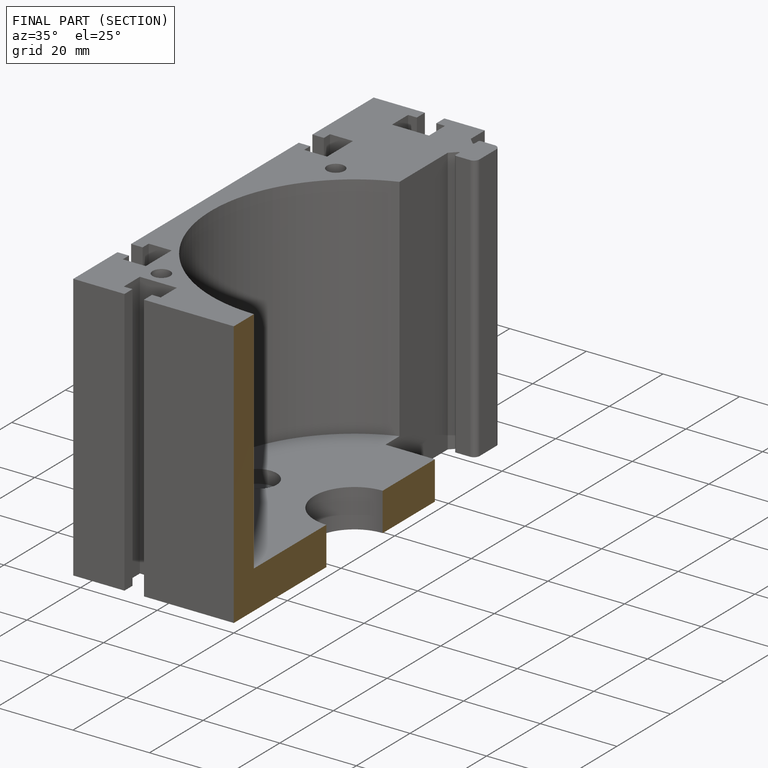
[diagram: finished part — half-section view (interior)]
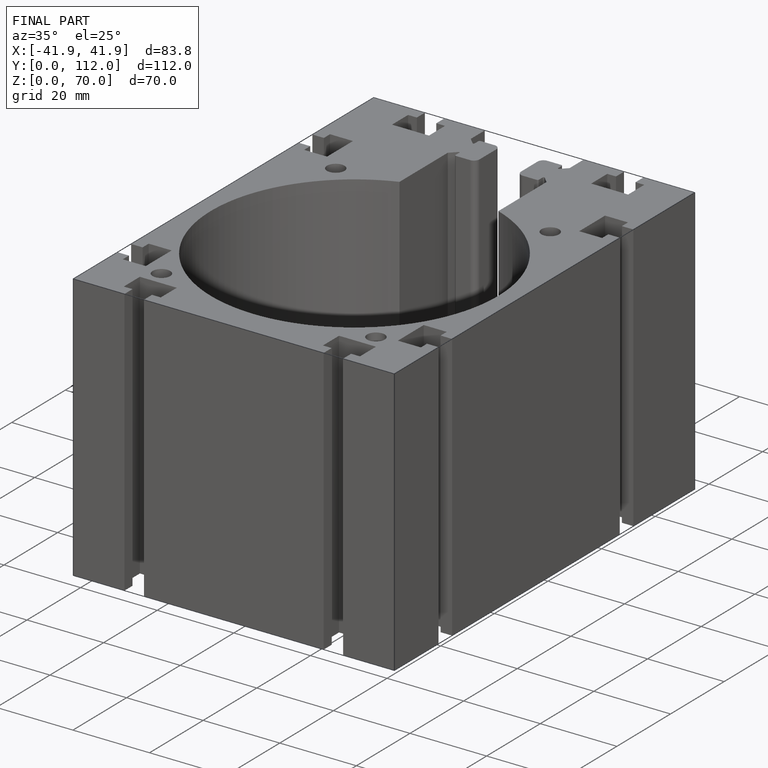
[diagram: finished part — iso view with bounding-box wireframe]
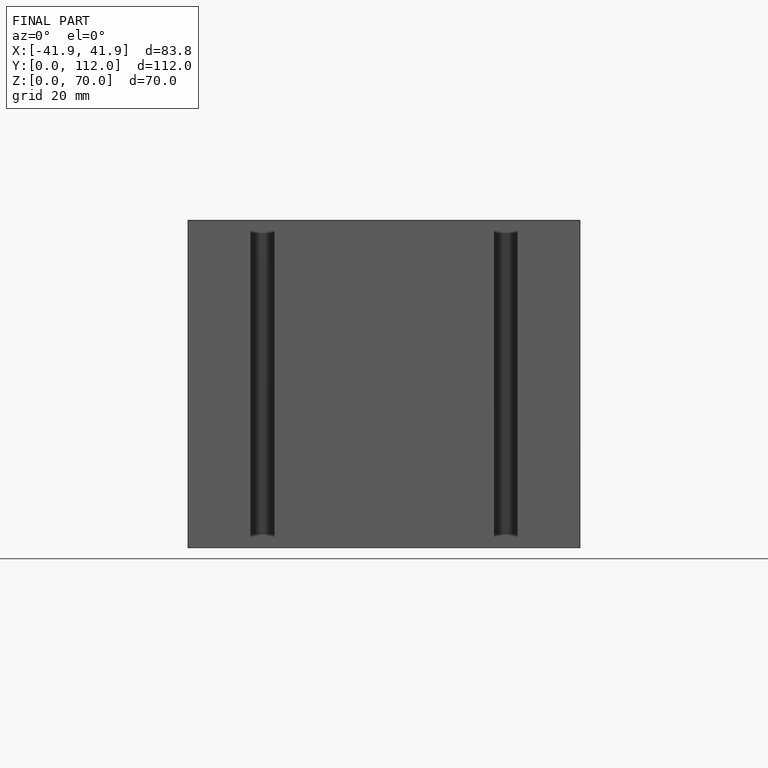
[diagram: finished part — front view with bounding-box wireframe]
